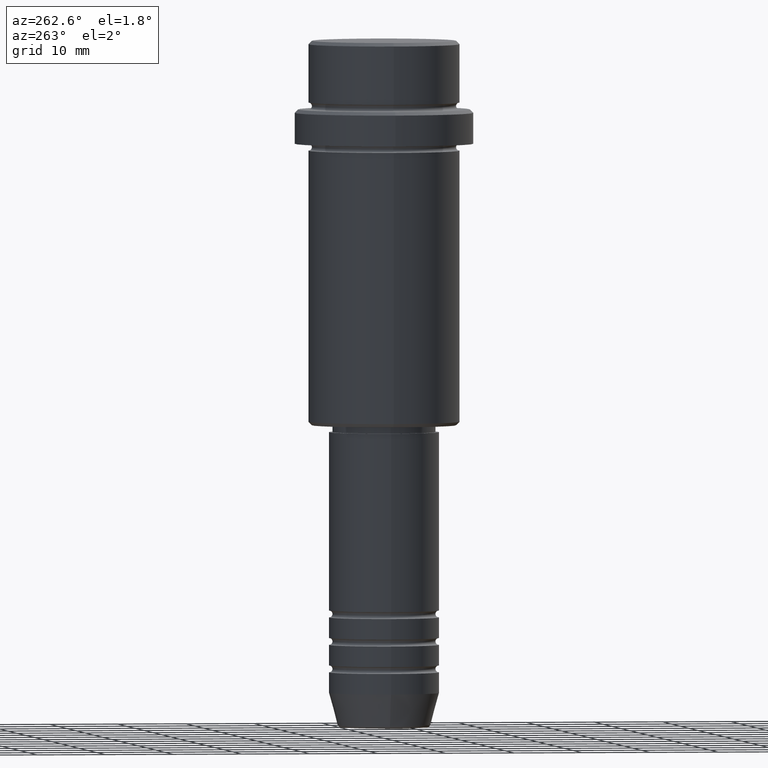
[diagram: clean part render]
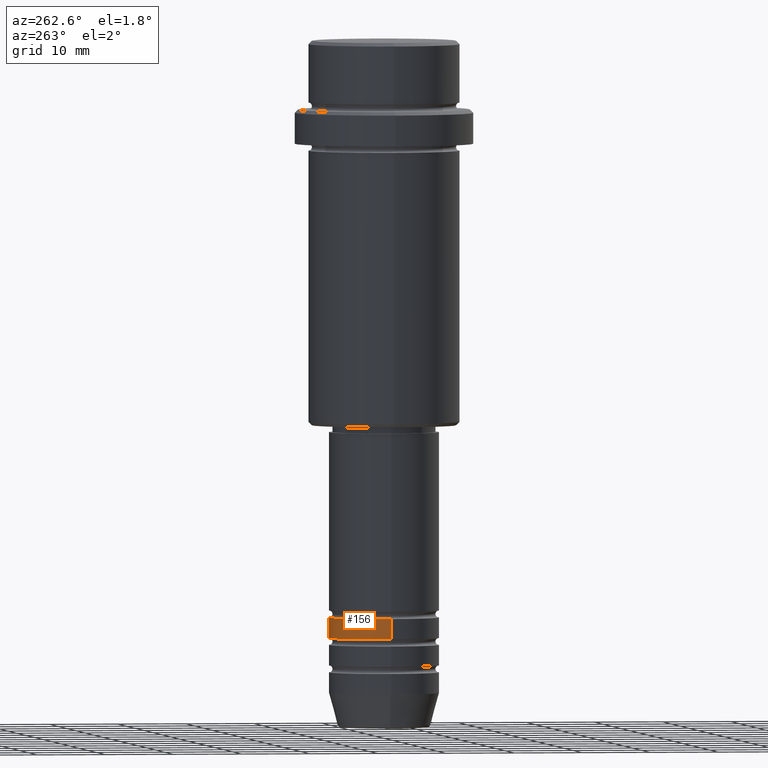
[diagram: same view with one face highlighted and labeled with its STEP entity id]
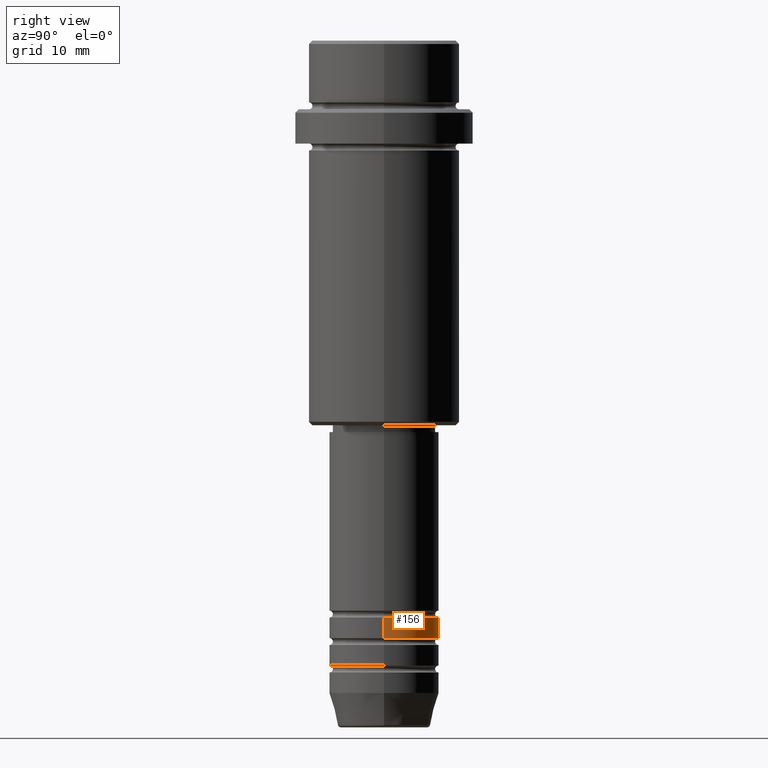
[diagram: same view with one face highlighted and labeled with its STEP entity id]
A machine part, auxiliary view. The second image highlights one B-rep face of the part: STEP entity #156.
A second angle (right view) of the same face is appended — the face is thin or edge-on in the first view.
In plain terms, the highlighted cylindrical surface (partial cylindrical patch) has radius 8 mm, axis along (-0, -0, 1).
Its self-contained STEP definition (entity closure, byte-faithful):
#22 = CARTESIAN_POINT ( 'NONE',  ( 8.000000000000000000, 0.000000000000000000, 0.000000000000000000 ) ) ;
#61 = AXIS2_PLACEMENT_3D ( 'NONE', #1168, #1062, #1057 ) ;
#101 = CARTESIAN_POINT ( 'NONE',  ( 8.000000000000000000, 0.000000000000000000, -83.99999999999988631 ) ) ;
#156 = ADVANCED_FACE ( 'NONE', ( #294 ), #392, .T. ) ;
#178 = CARTESIAN_POINT ( 'NONE',  ( 0.000000000000000000, 0.000000000000000000, 0.000000000000000000 ) ) ;
#245 = VECTOR ( 'NONE', #1396, 1000.000000000000000 ) ;
#294 = FACE_OUTER_BOUND ( 'NONE', #1058, .T. ) ;
#331 = VERTEX_POINT ( 'NONE', #101 ) ;
#345 = DIRECTION ( 'NONE',  ( -0.000000000000000000, -0.000000000000000000, 1.000000000000000000 ) ) ;
#353 = AXIS2_PLACEMENT_3D ( 'NONE', #431, #763, #756 ) ;
#392 = CYLINDRICAL_SURFACE ( 'NONE', #1070, 8.000000000000000000 ) ;
#431 = CARTESIAN_POINT ( 'NONE',  ( 0.000000000000000000, 0.000000000000000000, -83.99999999999988631 ) ) ;
#552 = EDGE_CURVE ( 'NONE', #1005, #331, #1218, .T. ) ;
#556 = VECTOR ( 'NONE', #345, 1000.000000000000000 ) ;
#580 = ORIENTED_EDGE ( 'NONE', *, *, #1006, .F. ) ;
#592 = CARTESIAN_POINT ( 'NONE',  ( -8.000000000000000000, 9.797174393178825657E-16, -86.99999999999988631 ) ) ;
#657 = CIRCLE ( 'NONE', #353, 8.000000000000000000 ) ;
#679 = ORIENTED_EDGE ( 'NONE', *, *, #552, .F. ) ;
#756 = DIRECTION ( 'NONE',  ( 1.000000000000000000, 0.000000000000000000, 0.000000000000000000 ) ) ;
#763 = DIRECTION ( 'NONE',  ( -0.000000000000000000, -0.000000000000000000, 1.000000000000000000 ) ) ;
#823 = CARTESIAN_POINT ( 'NONE',  ( -8.000000000000000000, 9.797174393178825657E-16, -83.99999999999988631 ) ) ;
#826 = DIRECTION ( 'NONE',  ( -0.000000000000000000, -0.000000000000000000, 1.000000000000000000 ) ) ;
#876 = VERTEX_POINT ( 'NONE', #823 ) ;
#886 = ORIENTED_EDGE ( 'NONE', *, *, #992, .T. ) ;
#952 = DIRECTION ( 'NONE',  ( 1.000000000000000000, 0.000000000000000000, 0.000000000000000000 ) ) ;
#959 = CARTESIAN_POINT ( 'NONE',  ( -8.000000000000000000, 9.797174393178825657E-16, 0.000000000000000000 ) ) ;
#966 = CARTESIAN_POINT ( 'NONE',  ( 8.000000000000000000, 0.000000000000000000, -86.99999999999988631 ) ) ;
#992 = EDGE_CURVE ( 'NONE', #1330, #876, #1064, .T. ) ;
#1005 = VERTEX_POINT ( 'NONE', #966 ) ;
#1006 = EDGE_CURVE ( 'NONE', #331, #876, #657, .T. ) ;
#1057 = DIRECTION ( 'NONE',  ( 1.000000000000000000, 0.000000000000000000, 0.000000000000000000 ) ) ;
#1058 = EDGE_LOOP ( 'NONE', ( #1373, #886, #580, #679 ) ) ;
#1062 = DIRECTION ( 'NONE',  ( -0.000000000000000000, -0.000000000000000000, 1.000000000000000000 ) ) ;
#1064 = LINE ( 'NONE', #959, #245 ) ;
#1070 = AXIS2_PLACEMENT_3D ( 'NONE', #178, #826, #952 ) ;
#1100 = CIRCLE ( 'NONE', #61, 8.000000000000000000 ) ;
#1168 = CARTESIAN_POINT ( 'NONE',  ( 0.000000000000000000, 0.000000000000000000, -86.99999999999988631 ) ) ;
#1218 = LINE ( 'NONE', #22, #556 ) ;
#1330 = VERTEX_POINT ( 'NONE', #592 ) ;
#1369 = EDGE_CURVE ( 'NONE', #1005, #1330, #1100, .T. ) ;
#1373 = ORIENTED_EDGE ( 'NONE', *, *, #1369, .T. ) ;
#1396 = DIRECTION ( 'NONE',  ( -0.000000000000000000, -0.000000000000000000, 1.000000000000000000 ) ) ;